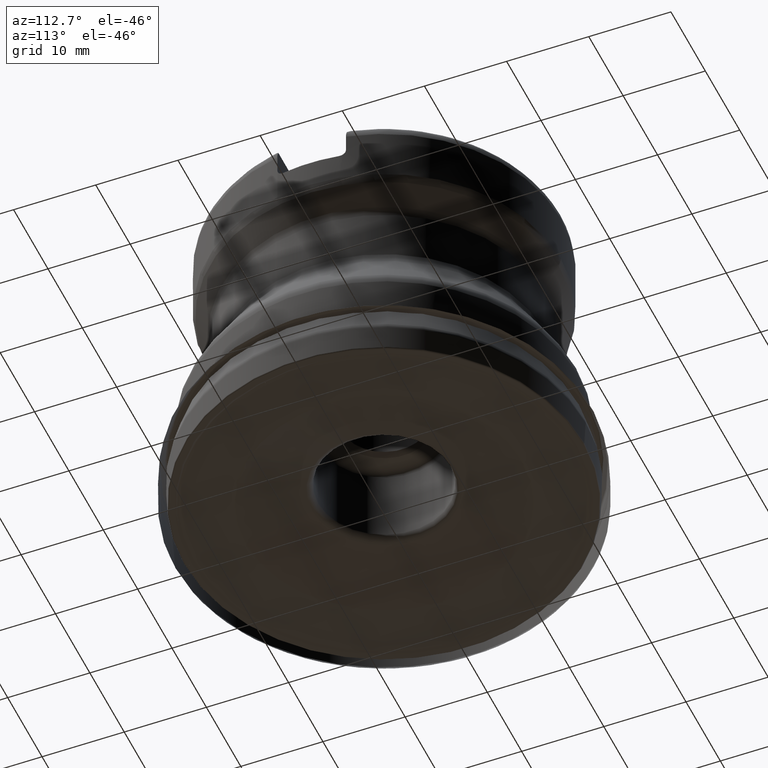
[diagram: clean part render]
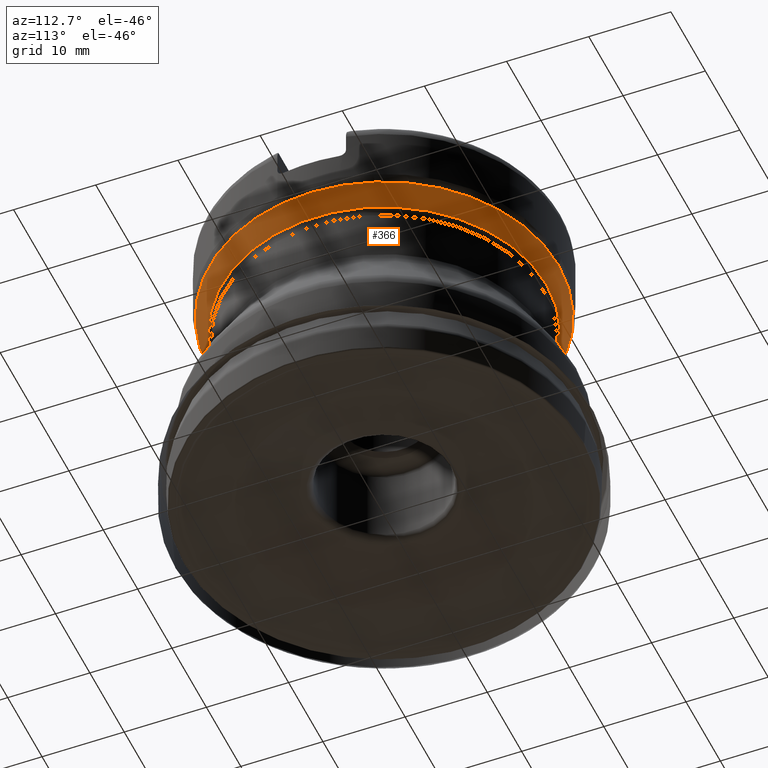
[diagram: same view with one face highlighted and labeled with its STEP entity id]
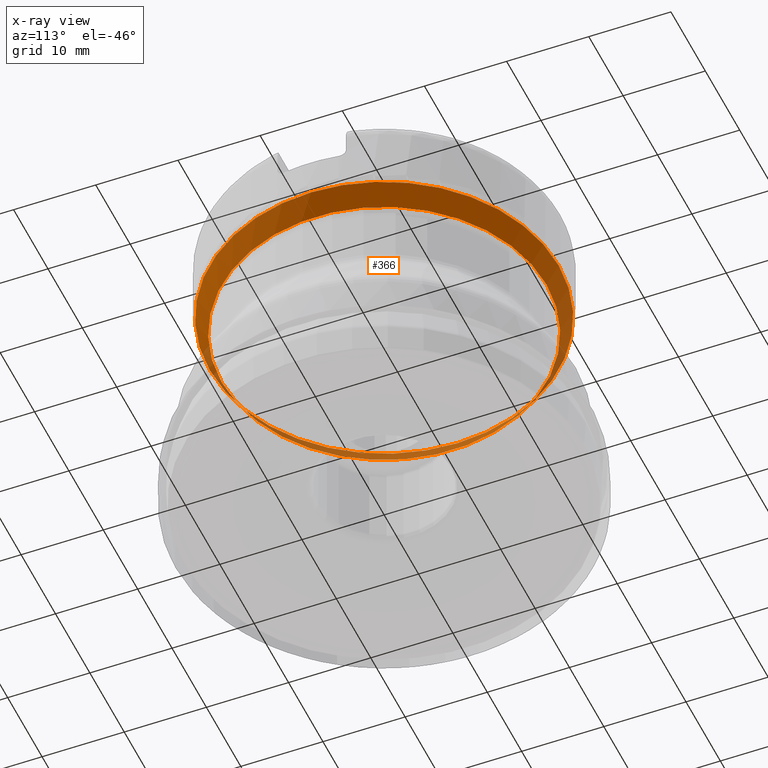
[diagram: x-ray of the same camera — body ghosted, the highlighted face saturated]
A machine part, auxiliary view. The second image highlights one B-rep face of the part: STEP entity #366.
The next image is the same camera in x-ray: the body ghosted, the highlighted face saturated — about 14% of this face is hidden behind the body in this view.
In plain terms, the highlighted conical surface has half-angle 30 deg.
Its self-contained STEP definition (entity closure, byte-faithful):
#179=FACE_BOUND('',#487,.T.);
#180=FACE_BOUND('',#488,.T.);
#277=CONICAL_SURFACE('',#1218,21.5011,30.);
#366=ADVANCED_FACE('',(#179,#180),#277,.T.);
#487=EDGE_LOOP('',(#655));
#488=EDGE_LOOP('',(#656));
#655=ORIENTED_EDGE('',*,*,#979,.T.);
#656=ORIENTED_EDGE('',*,*,#980,.T.);
#875=VERTEX_POINT('',#2014);
#876=VERTEX_POINT('',#2016);
#979=EDGE_CURVE('',#875,#875,#1065,.T.);
#980=EDGE_CURVE('',#876,#876,#1066,.T.);
#1065=CIRCLE('',#1216,19.7690491924311);
#1066=CIRCLE('',#1217,21.2331508075689);
#1216=AXIS2_PLACEMENT_3D('',#2013,#1394,#1395);
#1217=AXIS2_PLACEMENT_3D('',#2015,#1396,#1397);
#1218=AXIS2_PLACEMENT_3D('',#2017,#1398,#1399);
#1394=DIRECTION('',(0.,1.17145536458252E-15,1.));
#1395=DIRECTION('',(0.,-1.,1.22849249993134E-15));
#1396=DIRECTION('',(0.,-1.17145536458252E-15,-1.));
#1397=DIRECTION('',(0.,1.,-1.14378355260483E-15));
#1398=DIRECTION('',(0.,1.17145536458252E-15,1.));
#1399=DIRECTION('',(0.,-1.,9.90688941042076E-16));
#2013=CARTESIAN_POINT('',(0.,3.28921237267481E-14,28.078));
#2014=CARTESIAN_POINT('',(0.,-19.7690491924311,28.078));
#2015=CARTESIAN_POINT('',(0.,3.58628154937312E-14,30.6138983848623));
#2016=CARTESIAN_POINT('',(0.,21.2331508075689,30.6138983848622));
#2017=CARTESIAN_POINT('',(0.,3.64064898204957E-14,31.078));